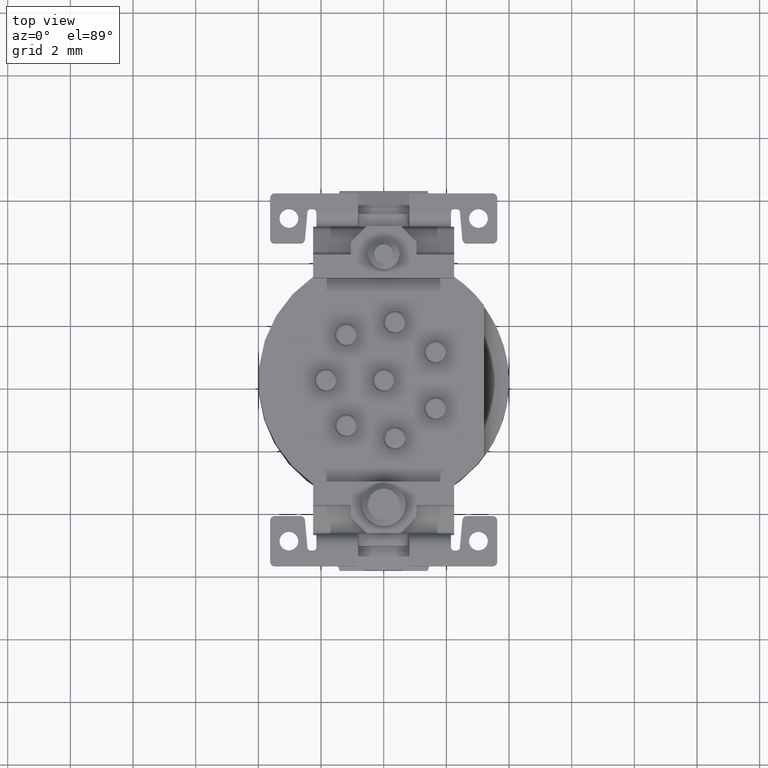
[diagram: clean part render]
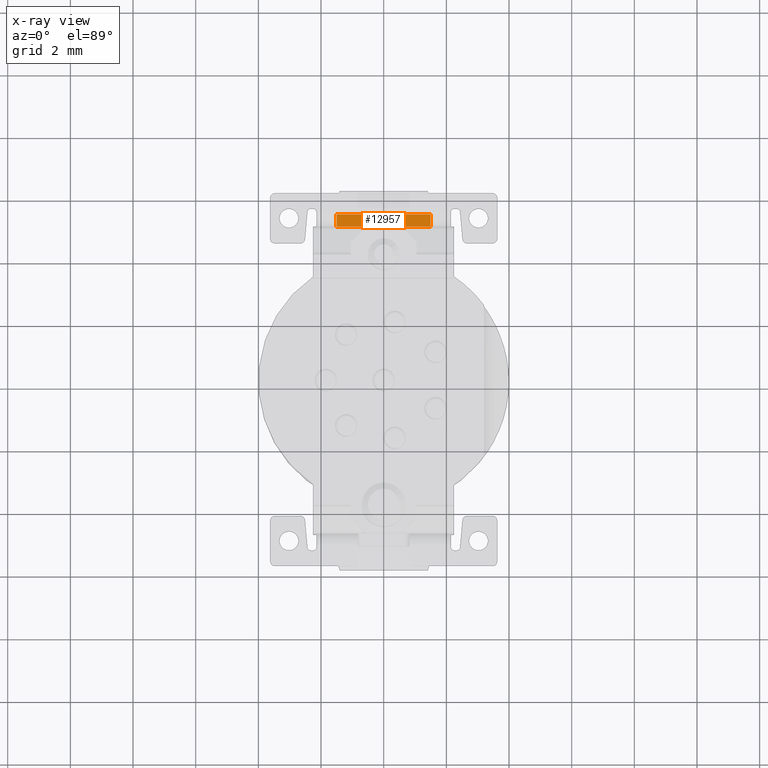
[diagram: x-ray — body ghosted, one internal face saturated and labeled with its STEP entity id]
A machine part, top view, then the same camera in x-ray: the body is ghosted and one INTERNAL B-rep face — a face not visible from any outside direction — is saturated and labeled: STEP entity #12957.
In plain terms, the highlighted planar face has unit normal (0, 0, 1).
Its self-contained STEP definition (entity closure, byte-faithful):
#3711=DIRECTION('',(1.E0,0.E0,0.E0));
#3712=VECTOR('',#3711,3.E0);
#3713=CARTESIAN_POINT('',(-1.5E0,5.3E0,-1.176460183660E0));
#3714=LINE('',#3713,#3712);
#4443=DIRECTION('',(1.E0,0.E0,0.E0));
#4444=VECTOR('',#4443,3.E0);
#4445=CARTESIAN_POINT('',(-1.5E0,4.9E0,-1.176460183660E0));
#4446=LINE('',#4445,#4444);
#4469=DIRECTION('',(0.E0,-1.E0,0.E0));
#4470=VECTOR('',#4469,4.E-1);
#4471=CARTESIAN_POINT('',(1.5E0,5.3E0,-1.176460183660E0));
#4472=LINE('',#4471,#4470);
#4473=DIRECTION('',(0.E0,-1.E0,0.E0));
#4474=VECTOR('',#4473,4.E-1);
#4475=CARTESIAN_POINT('',(-1.5E0,5.3E0,-1.176460183660E0));
#4476=LINE('',#4475,#4474);
#6384=CARTESIAN_POINT('',(-1.5E0,5.3E0,-1.176460183660E0));
#6385=CARTESIAN_POINT('',(1.5E0,5.3E0,-1.176460183660E0));
#6386=VERTEX_POINT('',#6384);
#6387=VERTEX_POINT('',#6385);
#6456=CARTESIAN_POINT('',(-1.5E0,4.9E0,-1.176460183660E0));
#6457=CARTESIAN_POINT('',(1.5E0,4.9E0,-1.176460183660E0));
#6458=VERTEX_POINT('',#6456);
#6459=VERTEX_POINT('',#6457);
#12944=CARTESIAN_POINT('',(0.E0,5.1E0,-1.176460183660E0));
#12945=DIRECTION('',(0.E0,0.E0,1.E0));
#12946=DIRECTION('',(1.E0,0.E0,0.E0));
#12947=AXIS2_PLACEMENT_3D('',#12944,#12945,#12946);
#12948=PLANE('',#12947);
#12949=ORIENTED_EDGE('',*,*,#12927,.T.);
#12951=ORIENTED_EDGE('',*,*,#12950,.F.);
#12952=ORIENTED_EDGE('',*,*,#11836,.F.);
#12954=ORIENTED_EDGE('',*,*,#12953,.T.);
#12955=EDGE_LOOP('',(#12949,#12951,#12952,#12954));
#12956=FACE_OUTER_BOUND('',#12955,.F.);
#11836=EDGE_CURVE('',#6386,#6387,#3714,.T.);
#12927=EDGE_CURVE('',#6458,#6459,#4446,.T.);
#12950=EDGE_CURVE('',#6387,#6459,#4472,.T.);
#12953=EDGE_CURVE('',#6386,#6458,#4476,.T.);
#12957=ADVANCED_FACE('',(#12956),#12948,.F.);